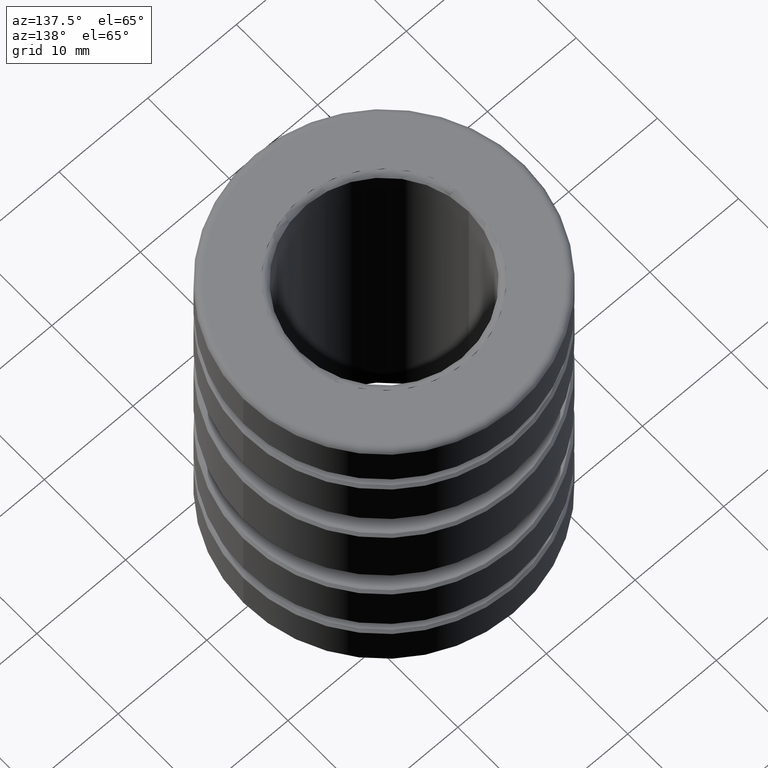
[diagram: clean part render]
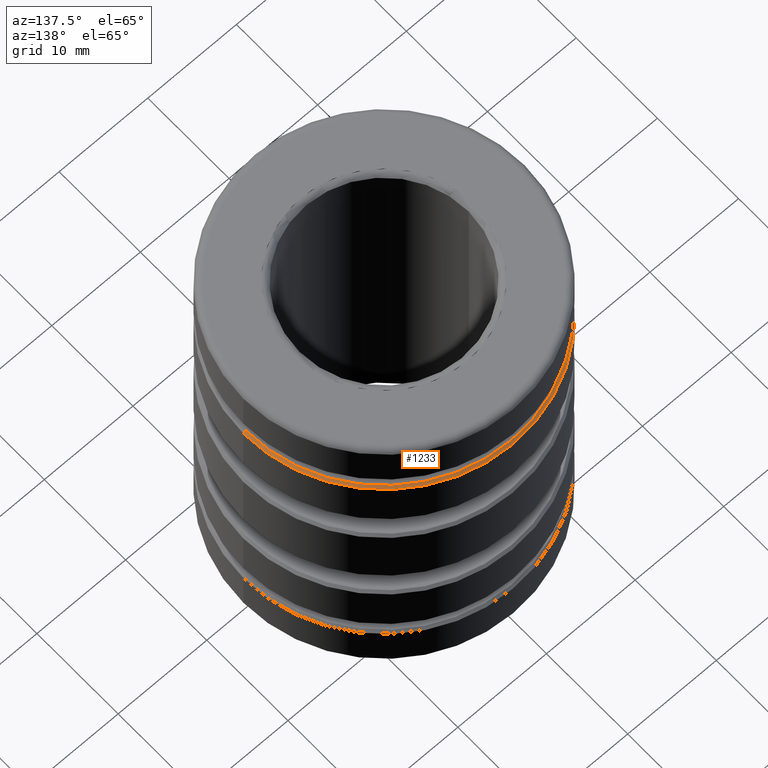
[diagram: same view with one face highlighted and labeled with its STEP entity id]
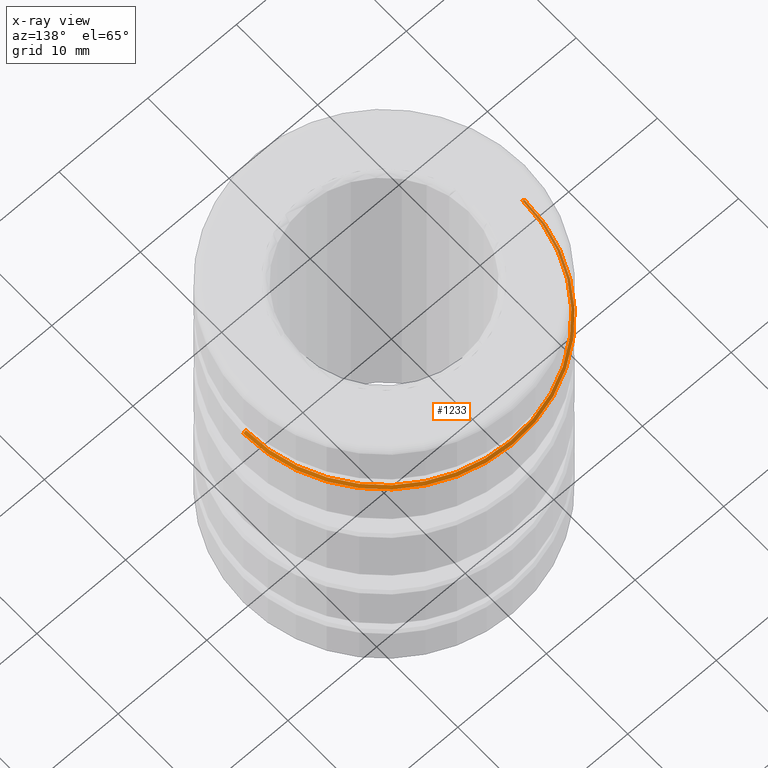
[diagram: x-ray of the same camera — body ghosted, the highlighted face saturated]
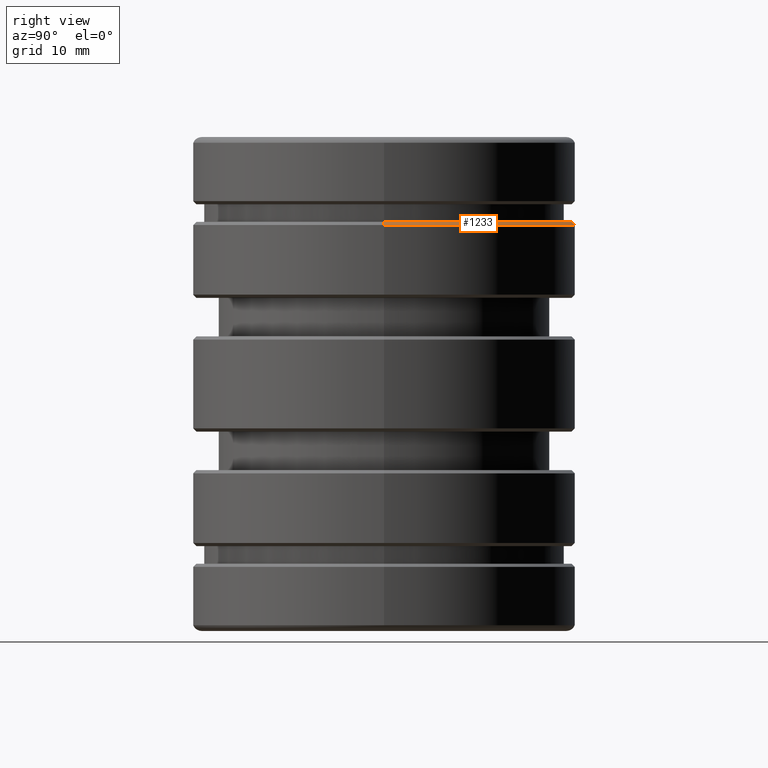
[diagram: same view with one face highlighted and labeled with its STEP entity id]
A machine part, auxiliary view. The second image highlights one B-rep face of the part: STEP entity #1233.
The next image is the same camera in x-ray: the body ghosted, the highlighted face saturated — about 15% of this face is hidden behind the body in this view.
A second angle (right view) of the same face is appended — the face is thin or edge-on in the first view.
In plain terms, the highlighted conical surface has half-angle 45 deg.
Its self-contained STEP definition (entity closure, byte-faithful):
#101 = CIRCLE ( 'NONE', #1068, 0.6246249999999999858 ) ;
#181 = FACE_OUTER_BOUND ( 'NONE', #1985, .T. ) ;
#228 = DIRECTION ( 'NONE',  ( -1.000000000000000000, 0.000000000000000000, 0.000000000000000000 ) ) ;
#247 = CARTESIAN_POINT ( 'NONE',  ( -0.6141249999999995879, 0.000000000000000000, 0.5310000000000000275 ) ) ;
#255 = DIRECTION ( 'NONE',  ( -1.000000000000000000, 0.000000000000000000, 0.000000000000000000 ) ) ;
#302 = EDGE_CURVE ( 'NONE', #1939, #1858, #1678, .T. ) ;
#748 = DIRECTION ( 'NONE',  ( -0.000000000000000000, -0.000000000000000000, 1.000000000000000000 ) ) ;
#918 = AXIS2_PLACEMENT_3D ( 'NONE', #2260, #1801, #255 ) ;
#948 = DIRECTION ( 'NONE',  ( 0.000000000000000000, 0.000000000000000000, -1.000000000000000000 ) ) ;
#970 = VECTOR ( 'NONE', #1552, 39.37007874015748854 ) ;
#975 = ORIENTED_EDGE ( 'NONE', *, *, #2577, .F. ) ;
#1068 = AXIS2_PLACEMENT_3D ( 'NONE', #2667, #748, #1621 ) ;
#1157 = CARTESIAN_POINT ( 'NONE',  ( -0.6141249999999995879, 0.000000000000000000, 0.5310000000000000275 ) ) ;
#1233 = ADVANCED_FACE ( 'NONE', ( #181 ), #1781, .T. ) ;
#1241 = AXIS2_PLACEMENT_3D ( 'NONE', #2774, #948, #228 ) ;
#1285 = VERTEX_POINT ( 'NONE', #2389 ) ;
#1350 = LINE ( 'NONE', #1157, #970 ) ;
#1460 = CIRCLE ( 'NONE', #918, 0.6141249999999995879 ) ;
#1534 = EDGE_CURVE ( 'NONE', #2331, #1285, #1350, .T. ) ;
#1552 = DIRECTION ( 'NONE',  ( -0.7071067811865557884, 0.000000000000000000, -0.7071067811865391350 ) ) ;
#1561 = VECTOR ( 'NONE', #2701, 39.37007874015748854 ) ;
#1621 = DIRECTION ( 'NONE',  ( -1.000000000000000000, 0.000000000000000000, 0.000000000000000000 ) ) ;
#1678 = LINE ( 'NONE', #2117, #1561 ) ;
#1759 = CARTESIAN_POINT ( 'NONE',  ( 0.6246249999999999858, 7.649450069174155443E-17, 0.5204999999999998517 ) ) ;
#1781 = CONICAL_SURFACE ( 'NONE', #1241, 0.6141249999999995879, 0.7853981633974600474 ) ;
#1801 = DIRECTION ( 'NONE',  ( 0.000000000000000000, 0.000000000000000000, 1.000000000000000000 ) ) ;
#1858 = VERTEX_POINT ( 'NONE', #1759 ) ;
#1879 = ORIENTED_EDGE ( 'NONE', *, *, #1534, .F. ) ;
#1939 = VERTEX_POINT ( 'NONE', #2357 ) ;
#1985 = EDGE_LOOP ( 'NONE', ( #975, #2734, #2015, #1879 ) ) ;
#2015 = ORIENTED_EDGE ( 'NONE', *, *, #2104, .T. ) ;
#2104 = EDGE_CURVE ( 'NONE', #1858, #1285, #101, .T. ) ;
#2117 = CARTESIAN_POINT ( 'NONE',  ( 0.6141249999999995879, 7.520862155263676861E-17, 0.5310000000000000275 ) ) ;
#2260 = CARTESIAN_POINT ( 'NONE',  ( 0.000000000000000000, 0.000000000000000000, 0.5310000000000000275 ) ) ;
#2331 = VERTEX_POINT ( 'NONE', #247 ) ;
#2357 = CARTESIAN_POINT ( 'NONE',  ( 0.6141249999999995879, 7.585156112218915536E-17, 0.5310000000000000275 ) ) ;
#2389 = CARTESIAN_POINT ( 'NONE',  ( -0.6246249999999999858, 0.000000000000000000, 0.5204999999999998517 ) ) ;
#2577 = EDGE_CURVE ( 'NONE', #1939, #2331, #1460, .T. ) ;
#2667 = CARTESIAN_POINT ( 'NONE',  ( 0.000000000000000000, 0.000000000000000000, 0.5204999999999998517 ) ) ;
#2701 = DIRECTION ( 'NONE',  ( 0.7071067811865557884, 8.659560562355035164E-17, -0.7071067811865391350 ) ) ;
#2734 = ORIENTED_EDGE ( 'NONE', *, *, #302, .T. ) ;
#2774 = CARTESIAN_POINT ( 'NONE',  ( 0.000000000000000000, 0.000000000000000000, 0.5310000000000000275 ) ) ;